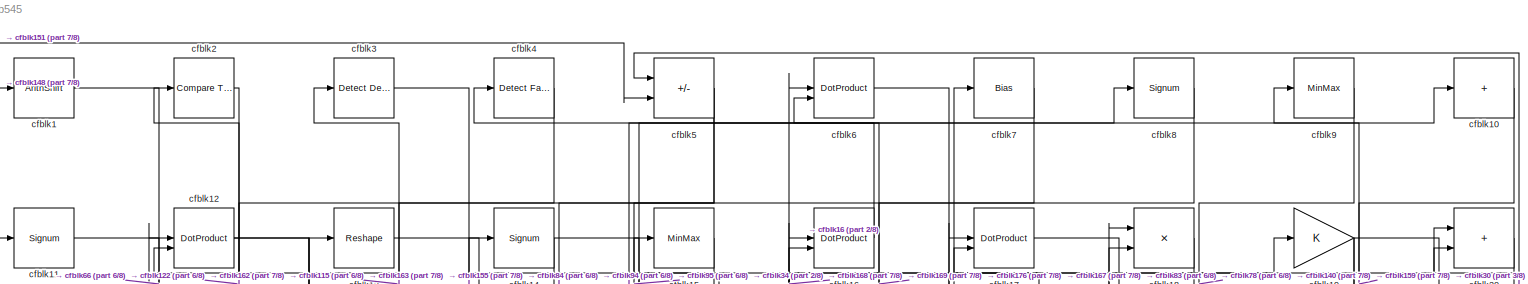
[diagram: root canvas - part 1/8, full width, top band]
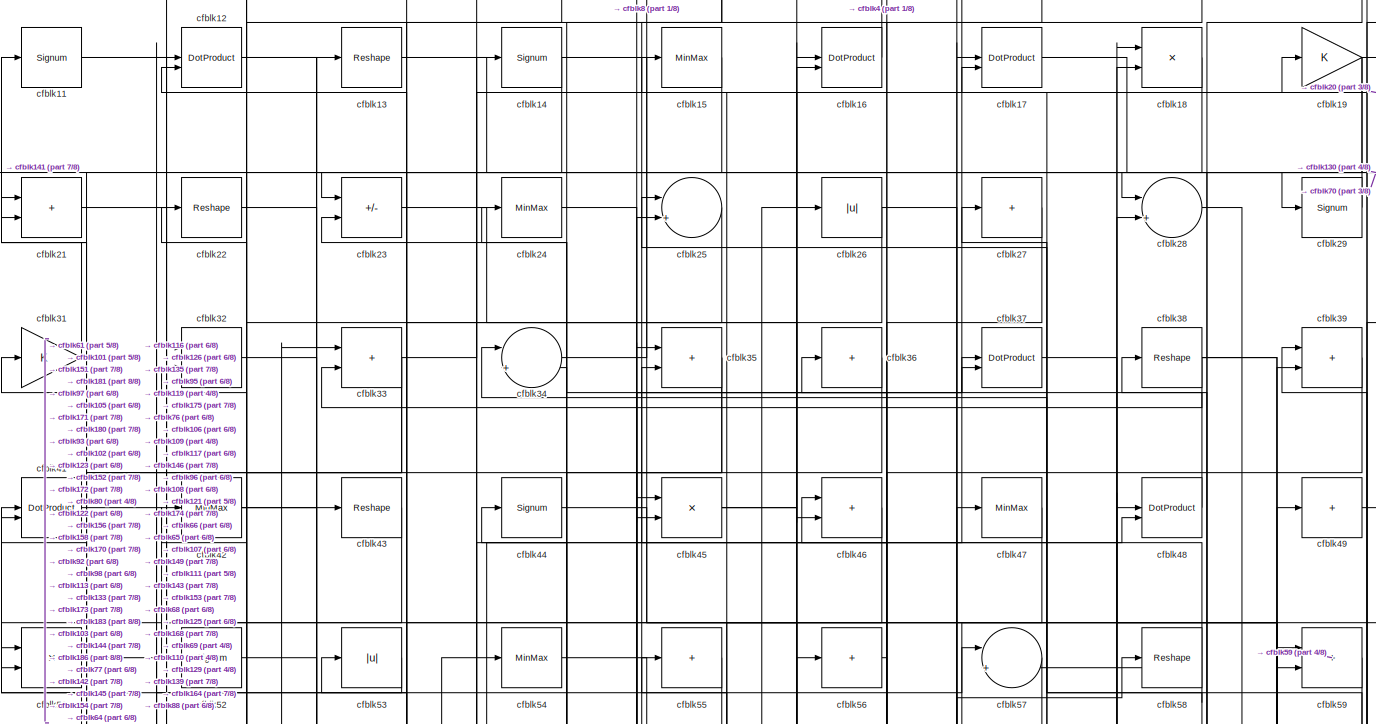
[diagram: root canvas - part 2/8, full width, top band]
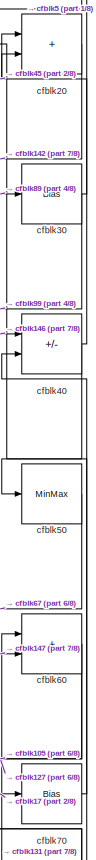
[diagram: root canvas - part 3/8, top right region]
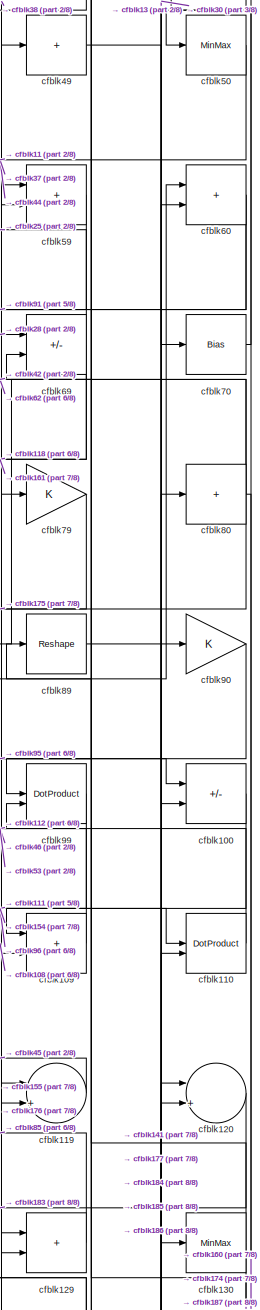
[diagram: root canvas - part 4/8, middle right region]
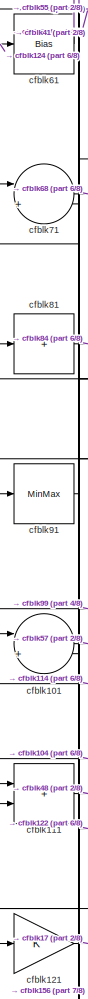
[diagram: root canvas - part 5/8, middle left region]
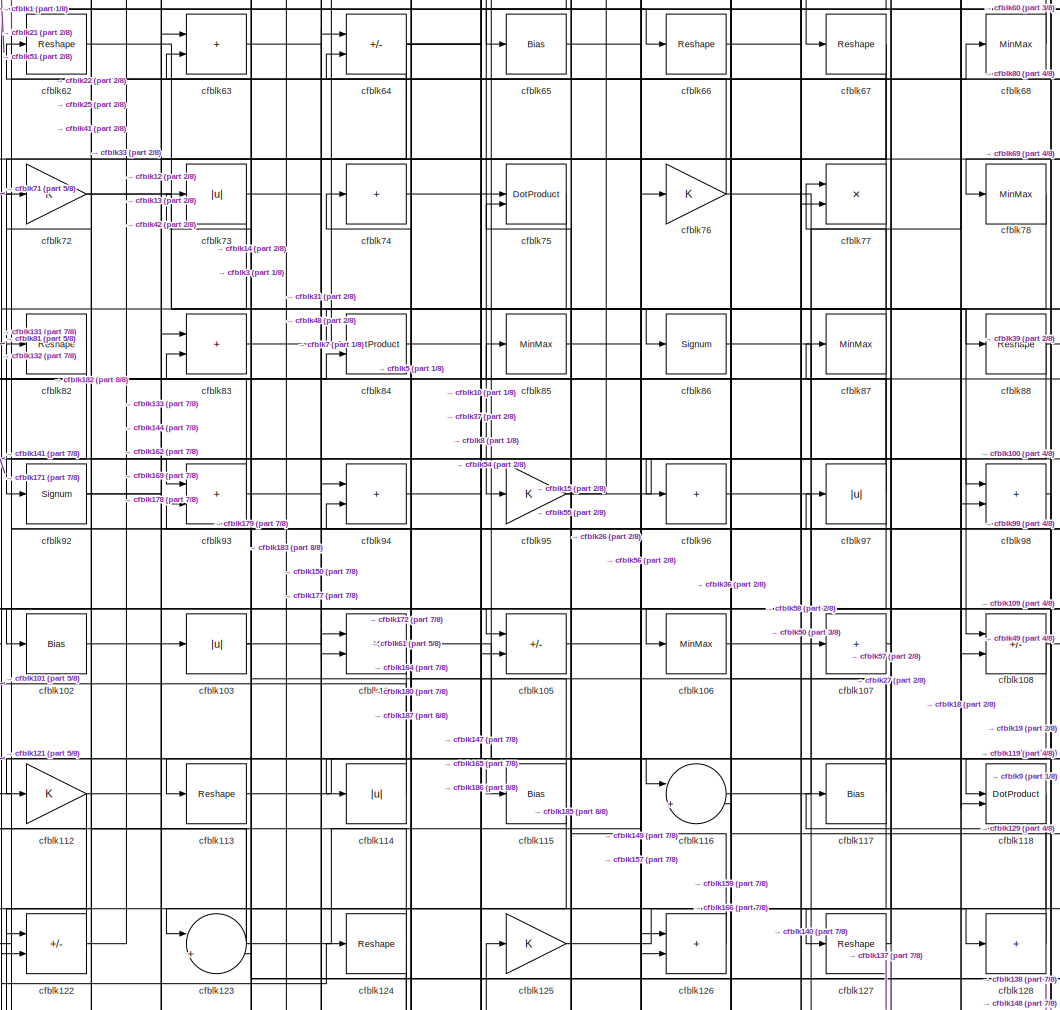
[diagram: root canvas - part 6/8, central region]
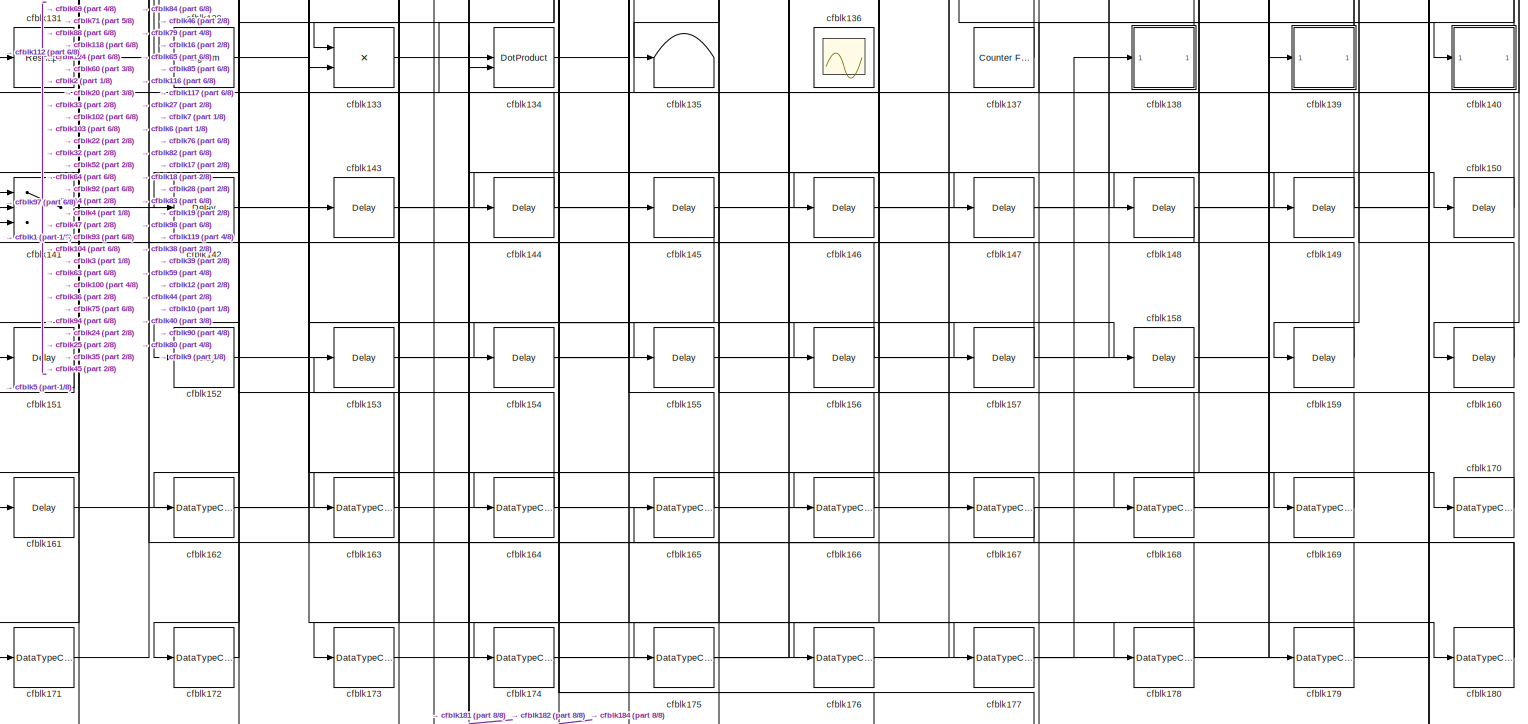
[diagram: root canvas - part 7/8, full width, bottom band]
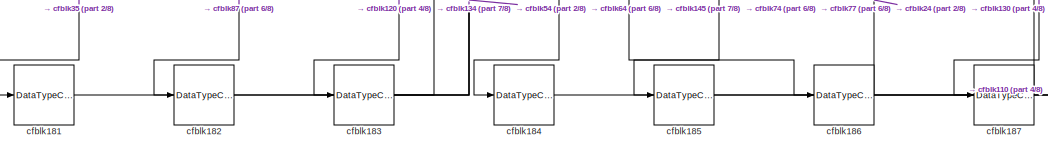
[diagram: root canvas - part 8/8, bottom center region]
MODEL slx_6262ddc7b545
KIND model
CONFIG AbsTol = auto
CONFIG EnableMultiTasking = off
CONFIG FixedStep = auto
CONFIG MaxStep = auto
CONFIG MinStep = auto
CONFIG RelTol = 1e-3
CONFIG SampleTimeConstraint = Unconstrained
CONFIG SolverName = VariableStepAuto
CONFIG StartTime = 0.0
CONFIG StopTime = 10.0
BLOCK [ArithShift] cfblk1
  BitShiftNumber = 8
  InputPortMap = u0
BLOCK [Sum] cfblk10
  IconShape = rectangular
  Inputs = +
BLOCK [Sum] cfblk100
  IconShape = rectangular
  Inputs = +-
BLOCK [Sum] cfblk101
  Inputs = |++
BLOCK [Bias] cfblk102
  Bias = 0.0
  SaturateOnIntegerOverflow = off
BLOCK [Abs] cfblk103
  SaturateOnIntegerOverflow = off
BLOCK [Product] cfblk104
  Inputs = */
  RndMeth = Zero
  SaturateOnIntegerOverflow = on
BLOCK [Sum] cfblk105
  IconShape = rectangular
  Inputs = +-
BLOCK [MinMax] cfblk106
BLOCK [Sum] cfblk107
  IconShape = rectangular
  Inputs = +
BLOCK [Sum] cfblk108
  IconShape = rectangular
  Inputs = +-
BLOCK [Sum] cfblk109
  IconShape = rectangular
BLOCK [Signum] cfblk11
BLOCK [DotProduct] cfblk110
  OutDataTypeStr = Inherit: Inherit via internal rule
BLOCK [Sum] cfblk111
  IconShape = rectangular
BLOCK [Gain] cfblk112
BLOCK [Reshape] cfblk113
BLOCK [Abs] cfblk114
  SaturateOnIntegerOverflow = off
BLOCK [Bias] cfblk115
  Bias = 0.0
  SaturateOnIntegerOverflow = off
BLOCK [Sum] cfblk116
  Inputs = |++
BLOCK [Bias] cfblk117
  Bias = 0.0
  SaturateOnIntegerOverflow = off
BLOCK [DotProduct] cfblk118
  OutDataTypeStr = Inherit: Inherit via internal rule
BLOCK [Sum] cfblk119
  Inputs = |++
BLOCK [DotProduct] cfblk12
  OutDataTypeStr = Inherit: Inherit via internal rule
BLOCK [Sum] cfblk120
  Inputs = |++
BLOCK [Gain] cfblk121
BLOCK [Sum] cfblk122
  IconShape = rectangular
  Inputs = +-
BLOCK [Sum] cfblk123
  Inputs = |++
BLOCK [Reshape] cfblk124
BLOCK [Gain] cfblk125
BLOCK [Sum] cfblk126
  IconShape = rectangular
BLOCK [Reshape] cfblk127
BLOCK [Sum] cfblk128
  IconShape = rectangular
  Inputs = +
BLOCK [Sum] cfblk129
  IconShape = rectangular
BLOCK [Reshape] cfblk13
BLOCK [MinMax] cfblk130
BLOCK [Reshape] cfblk131
BLOCK [Signum] cfblk132
BLOCK [Product] cfblk133
  Inputs = */
  RndMeth = Zero
  SaturateOnIntegerOverflow = on
BLOCK [DotProduct] cfblk134
  OutDataTypeStr = Inherit: Inherit via internal rule
BLOCK [Terminator] cfblk135
BLOCK [Scope] cfblk136
  Floating = on
  NumInputPorts = 1
  ScopeSpecificationString = Simulink.scopes.TimeScopeBlockCfg('CurrentConfiguration', extmgr.ConfigurationSet(extmgr.Configuration('Core','General UI',true,'FigureColor',[0.156862745098039 0.156862745098039 0.156862745098039]),extmgr.Configuration('Core','Source UI',true),extmgr.Configuration('Sources','WiredSimulink',true,'DataLoggingVariableName','ScopeData1','DataLoggingSaveFormat','StructureWithTime','DataLoggingLimitDat...<+2713ch>
BLOCK [Reference] cfblk137  REF=hdlsllib/Sources/Counter
Free-Running
  SourceBlock = hdlsllib/Sources/Counter\nFree-Running
  SourceType = Counter Free-Running
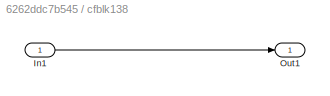
BLOCK [SubSystem] cfblk138
  LibrarySourceBlock = hdlsllib/Ports &\nSubsystems/Subsystem
BLOCK [Inport] cfblk138/In1
BLOCK [Outport] cfblk138/Out1
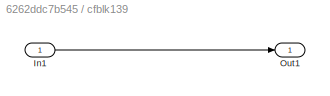
BLOCK [SubSystem] cfblk139
  LibrarySourceBlock = hdlsllib/Ports &\nSubsystems/Subsystem
BLOCK [Inport] cfblk139/In1
BLOCK [Outport] cfblk139/Out1
BLOCK [Signum] cfblk14
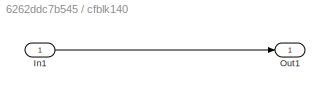
BLOCK [SubSystem] cfblk140
  LibrarySourceBlock = hdlsllib/Ports &\nSubsystems/Subsystem
BLOCK [Inport] cfblk140/In1
BLOCK [Outport] cfblk140/Out1
BLOCK [Switch] cfblk141
  InputSameDT = off
  SaturateOnIntegerOverflow = off
BLOCK [Delay] cfblk142
  InputPortMap = u0
  SampleTime = 1
BLOCK [Delay] cfblk143
  InputPortMap = u0
  SampleTime = 1
BLOCK [Delay] cfblk144
  InputPortMap = u0
  SampleTime = 1
BLOCK [Delay] cfblk145
  InputPortMap = u0
  SampleTime = 1
BLOCK [Delay] cfblk146
  InputPortMap = u0
  SampleTime = 1
BLOCK [Delay] cfblk147
  InputPortMap = u0
  SampleTime = 1
BLOCK [Delay] cfblk148
  InputPortMap = u0
  SampleTime = 1
BLOCK [Delay] cfblk149
  InputPortMap = u0
  SampleTime = 1
BLOCK [MinMax] cfblk15
BLOCK [Delay] cfblk150
  InputPortMap = u0
  SampleTime = 1
BLOCK [Delay] cfblk151
  InputPortMap = u0
  SampleTime = 1
BLOCK [Delay] cfblk152
  InputPortMap = u0
  SampleTime = 1
BLOCK [Delay] cfblk153
  InputPortMap = u0
  SampleTime = 1
BLOCK [Delay] cfblk154
  InputPortMap = u0
  SampleTime = 1
BLOCK [Delay] cfblk155
  InputPortMap = u0
  SampleTime = 1
BLOCK [Delay] cfblk156
  InputPortMap = u0
  SampleTime = 1
BLOCK [Delay] cfblk157
  InputPortMap = u0
  SampleTime = 1
BLOCK [Delay] cfblk158
  InputPortMap = u0
  SampleTime = 1
BLOCK [Delay] cfblk159
  InputPortMap = u0
  SampleTime = 1
BLOCK [DotProduct] cfblk16
  OutDataTypeStr = Inherit: Inherit via internal rule
BLOCK [Delay] cfblk160
  InputPortMap = u0
  SampleTime = 1
BLOCK [Delay] cfblk161
  InputPortMap = u0
  SampleTime = 1
BLOCK [DataTypeConversion] cfblk162
  OutDataTypeStr = uint8
  RndMeth = Floor
  SaturateOnIntegerOverflow = off
BLOCK [DataTypeConversion] cfblk163
  OutDataTypeStr = uint8
  RndMeth = Floor
  SaturateOnIntegerOverflow = off
BLOCK [DataTypeConversion] cfblk164
  RndMeth = Floor
  SaturateOnIntegerOverflow = off
BLOCK [DataTypeConversion] cfblk165
  OutDataTypeStr = uint8
  RndMeth = Floor
  SaturateOnIntegerOverflow = off
BLOCK [DataTypeConversion] cfblk166
  OutDataTypeStr = uint8
  RndMeth = Floor
  SaturateOnIntegerOverflow = off
BLOCK [DataTypeConversion] cfblk167
  OutDataTypeStr = uint8
  RndMeth = Floor
  SaturateOnIntegerOverflow = off
BLOCK [DataTypeConversion] cfblk168
  OutDataTypeStr = uint8
  RndMeth = Floor
  SaturateOnIntegerOverflow = off
BLOCK [DataTypeConversion] cfblk169
  OutDataTypeStr = uint8
  RndMeth = Floor
  SaturateOnIntegerOverflow = off
BLOCK [DotProduct] cfblk17
  OutDataTypeStr = Inherit: Inherit via internal rule
BLOCK [DataTypeConversion] cfblk170
  OutDataTypeStr = uint8
  RndMeth = Floor
  SaturateOnIntegerOverflow = off
BLOCK [DataTypeConversion] cfblk171
  OutDataTypeStr = uint8
  RndMeth = Floor
  SaturateOnIntegerOverflow = off
BLOCK [DataTypeConversion] cfblk172
  OutDataTypeStr = uint8
  RndMeth = Floor
  SaturateOnIntegerOverflow = off
BLOCK [DataTypeConversion] cfblk173
  OutDataTypeStr = uint8
  RndMeth = Floor
  SaturateOnIntegerOverflow = off
BLOCK [DataTypeConversion] cfblk174
  OutDataTypeStr = uint8
  RndMeth = Floor
  SaturateOnIntegerOverflow = off
BLOCK [DataTypeConversion] cfblk175
  OutDataTypeStr = uint8
  RndMeth = Floor
  SaturateOnIntegerOverflow = off
BLOCK [DataTypeConversion] cfblk176
  OutDataTypeStr = uint8
  RndMeth = Floor
  SaturateOnIntegerOverflow = off
BLOCK [DataTypeConversion] cfblk177
  RndMeth = Floor
  SaturateOnIntegerOverflow = off
BLOCK [DataTypeConversion] cfblk178
  OutDataTypeStr = uint8
  RndMeth = Floor
  SaturateOnIntegerOverflow = off
BLOCK [DataTypeConversion] cfblk179
  OutDataTypeStr = uint8
  RndMeth = Floor
  SaturateOnIntegerOverflow = off
BLOCK [Product] cfblk18
  Inputs = */
  RndMeth = Zero
  SaturateOnIntegerOverflow = on
BLOCK [DataTypeConversion] cfblk180
  RndMeth = Floor
  SaturateOnIntegerOverflow = off
BLOCK [DataTypeConversion] cfblk181
  OutDataTypeStr = uint8
  RndMeth = Floor
  SaturateOnIntegerOverflow = off
BLOCK [DataTypeConversion] cfblk182
  OutDataTypeStr = uint8
  RndMeth = Floor
  SaturateOnIntegerOverflow = off
BLOCK [DataTypeConversion] cfblk183
  RndMeth = Floor
  SaturateOnIntegerOverflow = off
BLOCK [DataTypeConversion] cfblk184
  OutDataTypeStr = uint8
  RndMeth = Floor
  SaturateOnIntegerOverflow = off
BLOCK [DataTypeConversion] cfblk185
  OutDataTypeStr = uint8
  RndMeth = Floor
  SaturateOnIntegerOverflow = off
BLOCK [DataTypeConversion] cfblk186
  RndMeth = Floor
  SaturateOnIntegerOverflow = off
BLOCK [DataTypeConversion] cfblk187
  OutDataTypeStr = uint8
  RndMeth = Floor
  SaturateOnIntegerOverflow = off
BLOCK [Gain] cfblk19
BLOCK [Reference] cfblk2  REF=hdlsllib/Logic and Bit
Operations/Compare
To Constant
  SourceBlock = hdlsllib/Logic and Bit\nOperations/Compare\nTo Constant
  SourceType = Compare To Constant
BLOCK [Sum] cfblk20
  IconShape = rectangular
BLOCK [Sum] cfblk21
  IconShape = rectangular
BLOCK [Reshape] cfblk22
BLOCK [Sum] cfblk23
  IconShape = rectangular
  Inputs = +-
BLOCK [MinMax] cfblk24
BLOCK [Sum] cfblk25
  Inputs = |++
BLOCK [Abs] cfblk26
  SaturateOnIntegerOverflow = off
BLOCK [Sum] cfblk27
  IconShape = rectangular
  Inputs = +
BLOCK [Sum] cfblk28
  Inputs = |++
BLOCK [Signum] cfblk29
BLOCK [Reference] cfblk3  REF=simulink/Logic and Bit
Operations/Detect
Decrease
  LibrarySourceBlock = hdlsllib/Logic and Bit\nOperations/Detect\nDecrease
  SourceBlock = simulink/Logic and Bit\nOperations/Detect\nDecrease
  SourceType = Detect Decrease
BLOCK [Bias] cfblk30
  Bias = 0.0
  SaturateOnIntegerOverflow = off
BLOCK [Gain] cfblk31
BLOCK [Product] cfblk32
  Inputs = */
  RndMeth = Zero
  SaturateOnIntegerOverflow = on
BLOCK [Sum] cfblk33
  IconShape = rectangular
BLOCK [Sum] cfblk34
  Inputs = |++
BLOCK [Sum] cfblk35
  IconShape = rectangular
BLOCK [Sum] cfblk36
  IconShape = rectangular
  Inputs = +
BLOCK [DotProduct] cfblk37
  OutDataTypeStr = Inherit: Inherit via internal rule
BLOCK [Reshape] cfblk38
BLOCK [Sum] cfblk39
  IconShape = rectangular
BLOCK [Reference] cfblk4  REF=hdlsllib/Logic and Bit
Operations/Detect Fall
Negative
  SourceBlock = hdlsllib/Logic and Bit\nOperations/Detect Fall\nNegative
  SourceType = Detect Fall Negative
BLOCK [Sum] cfblk40
  IconShape = rectangular
  Inputs = +-
BLOCK [DotProduct] cfblk41
  OutDataTypeStr = Inherit: Inherit via internal rule
BLOCK [MinMax] cfblk42
BLOCK [Reshape] cfblk43
BLOCK [Signum] cfblk44
BLOCK [Product] cfblk45
  Inputs = */
  RndMeth = Zero
  SaturateOnIntegerOverflow = on
BLOCK [Sum] cfblk46
  IconShape = rectangular
BLOCK [MinMax] cfblk47
BLOCK [DotProduct] cfblk48
  OutDataTypeStr = Inherit: Inherit via internal rule
BLOCK [Sum] cfblk49
  IconShape = rectangular
  Inputs = +
BLOCK [Sum] cfblk5
  IconShape = rectangular
  Inputs = +-
BLOCK [MinMax] cfblk50
BLOCK [Product] cfblk51
  Inputs = */
  RndMeth = Zero
  SaturateOnIntegerOverflow = on
BLOCK [Signum] cfblk52
BLOCK [Abs] cfblk53
  SaturateOnIntegerOverflow = off
BLOCK [MinMax] cfblk54
BLOCK [Sum] cfblk55
  IconShape = rectangular
  Inputs = +
BLOCK [Sum] cfblk56
  IconShape = rectangular
  Inputs = +
BLOCK [Sum] cfblk57
  Inputs = |++
BLOCK [Reshape] cfblk58
BLOCK [Sum] cfblk59
  IconShape = rectangular
BLOCK [DotProduct] cfblk6
  OutDataTypeStr = Inherit: Inherit via internal rule
BLOCK [Sum] cfblk60
  IconShape = rectangular
BLOCK [Bias] cfblk61
  Bias = 0.0
  SaturateOnIntegerOverflow = off
BLOCK [Reshape] cfblk62
BLOCK [Sum] cfblk63
  IconShape = rectangular
BLOCK [Sum] cfblk64
  IconShape = rectangular
  Inputs = +-
BLOCK [Bias] cfblk65
  Bias = 0.0
  SaturateOnIntegerOverflow = off
BLOCK [Reshape] cfblk66
BLOCK [Reshape] cfblk67
BLOCK [MinMax] cfblk68
BLOCK [Sum] cfblk69
  IconShape = rectangular
  Inputs = +-
BLOCK [Bias] cfblk7
  Bias = 0.0
  SaturateOnIntegerOverflow = off
BLOCK [Bias] cfblk70
  Bias = 0.0
  SaturateOnIntegerOverflow = off
BLOCK [Sum] cfblk71
  Inputs = |++
BLOCK [Gain] cfblk72
BLOCK [Abs] cfblk73
  SaturateOnIntegerOverflow = off
BLOCK [Sum] cfblk74
  IconShape = rectangular
  Inputs = +
BLOCK [DotProduct] cfblk75
  OutDataTypeStr = Inherit: Inherit via internal rule
BLOCK [Gain] cfblk76
BLOCK [Product] cfblk77
  Inputs = */
  RndMeth = Zero
  SaturateOnIntegerOverflow = on
BLOCK [MinMax] cfblk78
BLOCK [Gain] cfblk79
BLOCK [Signum] cfblk8
BLOCK [Sum] cfblk80
  IconShape = rectangular
  Inputs = +
BLOCK [Sum] cfblk81
  IconShape = rectangular
  Inputs = +
BLOCK [Reshape] cfblk82
BLOCK [Sum] cfblk83
  IconShape = rectangular
BLOCK [DotProduct] cfblk84
  OutDataTypeStr = Inherit: Inherit via internal rule
BLOCK [MinMax] cfblk85
BLOCK [Signum] cfblk86
BLOCK [MinMax] cfblk87
BLOCK [Reshape] cfblk88
BLOCK [Reshape] cfblk89
BLOCK [MinMax] cfblk9
BLOCK [Gain] cfblk90
BLOCK [MinMax] cfblk91
BLOCK [Signum] cfblk92
BLOCK [Sum] cfblk93
  IconShape = rectangular
BLOCK [Sum] cfblk94
  IconShape = rectangular
BLOCK [Gain] cfblk95
BLOCK [Sum] cfblk96
  IconShape = rectangular
  Inputs = +
BLOCK [Abs] cfblk97
  SaturateOnIntegerOverflow = off
BLOCK [Sum] cfblk98
  IconShape = rectangular
BLOCK [DotProduct] cfblk99
  OutDataTypeStr = Inherit: Inherit via internal rule
LINE cfblk100:1 -> cfblk154:1
LINE cfblk101:1 -> cfblk57:1
LINE cfblk102:1 -> cfblk178:1
NET cfblk103:1 -> cfblk19:1, cfblk73:1
NET cfblk104:1 -> cfblk121:1, cfblk126:2
LINE cfblk105:1 -> cfblk56:1
LINE cfblk106:1 -> cfblk107:1
LINE cfblk107:1 -> cfblk27:1
NET cfblk108:1 -> cfblk123:2, cfblk49:1
LINE cfblk109:1 -> cfblk46:1
LINE cfblk10:1 -> cfblk159:1
LINE cfblk110:1 -> cfblk53:1
LINE cfblk111:1 -> cfblk48:1
NET cfblk112:1 -> cfblk131:1, cfblk99:2
LINE cfblk113:1 -> cfblk115:1
LINE cfblk114:1 -> cfblk101:1
NET cfblk115:1 -> cfblk123:1, cfblk3:1
LINE cfblk116:1 -> cfblk18:1
NET cfblk117:1 -> cfblk166:1, cfblk36:1, cfblk64:2
LINE cfblk118:1 -> cfblk132:1
LINE cfblk119:1 -> cfblk112:1
LINE cfblk11:1 -> cfblk129:2
LINE cfblk120:1 -> cfblk183:1
LINE cfblk121:1 -> cfblk17:1
NET cfblk122:1 -> cfblk33:1, cfblk81:1
NET cfblk123:1 -> cfblk22:1, cfblk41:2, cfblk97:1
NET cfblk124:1 -> cfblk172:1, cfblk61:1, cfblk72:1
LINE cfblk125:1 -> cfblk128:1
LINE cfblk126:1 -> cfblk55:1
LINE cfblk127:1 -> cfblk87:1
LINE cfblk128:1 -> cfblk117:1
LINE cfblk129:1 -> cfblk85:1
NET cfblk12:1 -> cfblk29:1, cfblk77:2
NET cfblk130:1 -> cfblk187:1, cfblk89:1
NET cfblk131:1 -> cfblk124:1, cfblk60:1
LINE cfblk132:1 -> cfblk143:1
LINE cfblk133:1 -> cfblk150:1
LINE cfblk134:1 -> cfblk180:1
LINE cfblk137:1 -> cfblk82:1
LINE cfblk138/In1:1 -> cfblk138/Out1:1
LINE cfblk138:1 -> cfblk83:2
LINE cfblk139/In1:1 -> cfblk139/Out1:1
NET cfblk139:1 -> cfblk12:2, cfblk44:1
LINE cfblk13:1 -> cfblk130:1
LINE cfblk140/In1:1 -> cfblk140/Out1:1
LINE cfblk140:1 -> cfblk9:1
LINE cfblk141:1 -> cfblk90:1
LINE cfblk142:1 -> cfblk35:1
LINE cfblk143:1 -> cfblk18:2
LINE cfblk144:1 -> cfblk83:1
LINE cfblk145:1 -> cfblk184:1
LINE cfblk146:1 -> cfblk40:1
LINE cfblk147:1 -> cfblk60:2
LINE cfblk148:1 -> cfblk1:1
LINE cfblk149:1 -> cfblk17:2
NET cfblk14:1 -> cfblk133:1, cfblk76:1
LINE cfblk150:1 -> cfblk104:1
LINE cfblk151:1 -> cfblk5:2
LINE cfblk152:1 -> cfblk25:2
LINE cfblk153:1 -> cfblk28:2
LINE cfblk154:1 -> cfblk45:1
LINE cfblk155:1 -> cfblk59:1
LINE cfblk156:1 -> cfblk71:1
LINE cfblk157:1 -> cfblk93:2
LINE cfblk158:1 -> cfblk179:1
LINE cfblk159:1 -> cfblk116:2
LINE cfblk15:1 -> cfblk101:2
LINE cfblk160:1 -> cfblk69:2
LINE cfblk161:1 -> cfblk119:1
LINE cfblk162:1 -> cfblk103:1
LINE cfblk163:1 -> cfblk2:1
NET cfblk164:1 -> cfblk153:1, cfblk39:2
LINE cfblk165:1 -> cfblk75:1
LINE cfblk166:1 -> cfblk75:2
LINE cfblk167:1 -> cfblk165:1
LINE cfblk168:1 -> cfblk6:1
LINE cfblk169:1 -> cfblk6:2
LINE cfblk16:1 -> cfblk4:1
LINE cfblk170:1 -> cfblk38:1
LINE cfblk171:1 -> cfblk32:1
LINE cfblk172:1 -> cfblk32:2
LINE cfblk173:1 -> cfblk16:1
LINE cfblk174:1 -> cfblk47:1
LINE cfblk175:1 -> cfblk16:2
LINE cfblk176:1 -> cfblk79:1
NET cfblk177:1 -> cfblk138:1, cfblk80:1
LINE cfblk178:1 -> cfblk63:1
LINE cfblk179:1 -> cfblk63:2
LINE cfblk17:1 -> cfblk70:1
NET cfblk180:1 -> cfblk12:1, cfblk94:2
LINE cfblk181:1 -> cfblk134:1
LINE cfblk182:1 -> cfblk134:2
NET cfblk183:1 -> cfblk54:1, cfblk64:1
LINE cfblk184:1 -> cfblk120:1
LINE cfblk185:1 -> cfblk120:2
NET cfblk186:1 -> cfblk110:2, cfblk24:1
LINE cfblk187:1 -> cfblk74:1
LINE cfblk18:1 -> cfblk28:1
NET cfblk19:1 -> cfblk125:1, cfblk141:3, cfblk168:1
LINE cfblk1:1 -> cfblk66:1
LINE cfblk20:1 -> cfblk142:1
LINE cfblk21:1 -> cfblk93:1
LINE cfblk22:1 -> cfblk156:1
LINE cfblk23:1 -> cfblk46:2
LINE cfblk24:1 -> cfblk145:1
LINE cfblk25:1 -> cfblk102:1
NET cfblk26:1 -> cfblk108:2, cfblk113:1
LINE cfblk27:1 -> cfblk146:1
LINE cfblk28:1 -> cfblk69:1
LINE cfblk29:1 -> cfblk23:1
LINE cfblk2:1 -> cfblk162:1
NET cfblk30:1 -> cfblk5:1, cfblk99:1
LINE cfblk31:1 -> cfblk11:1
LINE cfblk32:1 -> cfblk170:1
NET cfblk33:1 -> cfblk14:1, cfblk151:1, cfblk152:1
LINE cfblk34:1 -> cfblk8:1
NET cfblk35:1 -> cfblk181:1, cfblk45:2
LINE cfblk36:1 -> cfblk144:1
LINE cfblk37:1 -> cfblk59:2
NET cfblk38:1 -> cfblk110:1, cfblk139:1, cfblk33:2
LINE cfblk39:1 -> cfblk96:1
LINE cfblk3:1 -> cfblk155:1
NET cfblk40:1 -> cfblk20:2, cfblk50:1
LINE cfblk41:1 -> cfblk52:1
NET cfblk42:1 -> cfblk43:1, cfblk98:2
LINE cfblk43:1 -> cfblk51:1
LINE cfblk44:1 -> cfblk129:1
NET cfblk45:1 -> cfblk119:2, cfblk20:1
LINE cfblk46:1 -> cfblk135:1
LINE cfblk47:1 -> cfblk173:1
LINE cfblk48:1 -> cfblk23:2
LINE cfblk49:1 -> cfblk100:2
LINE cfblk4:1 -> cfblk163:1
LINE cfblk50:1 -> cfblk67:1
LINE cfblk51:1 -> cfblk105:1
LINE cfblk52:1 -> cfblk158:1
LINE cfblk53:1 -> cfblk51:2
LINE cfblk54:1 -> cfblk116:1
LINE cfblk55:1 -> cfblk111:2
LINE cfblk56:1 -> cfblk106:1
LINE cfblk57:1 -> cfblk65:1
NET cfblk58:1 -> cfblk35:2, cfblk57:2
LINE cfblk59:1 -> cfblk91:1
NET cfblk5:1 -> cfblk122:1, cfblk84:1
NET cfblk60:1 -> cfblk105:2, cfblk127:1
LINE cfblk61:1 -> cfblk41:1
LINE cfblk62:1 -> cfblk108:1
LINE cfblk63:1 -> cfblk177:1
NET cfblk64:1 -> cfblk104:2, cfblk133:2, cfblk37:1, cfblk37:2, cfblk88:1
LINE cfblk65:1 -> cfblk149:1
LINE cfblk66:1 -> cfblk58:1
NET cfblk67:1 -> cfblk114:1, cfblk92:1
LINE cfblk68:1 -> cfblk34:1
NET cfblk69:1 -> cfblk118:1, cfblk161:1, cfblk25:1
LINE cfblk6:1 -> cfblk167:1
LINE cfblk70:1 -> cfblk40:2
LINE cfblk71:1 -> cfblk68:1
NET cfblk72:1 -> cfblk118:2, cfblk126:1
NET cfblk73:1 -> cfblk122:2, cfblk94:1
LINE cfblk74:1 -> cfblk186:1
LINE cfblk75:1 -> cfblk164:1
NET cfblk76:1 -> cfblk140:1, cfblk15:1
NET cfblk77:1 -> cfblk185:1, cfblk34:2
LINE cfblk78:1 -> cfblk86:1
LINE cfblk79:1 -> cfblk175:1
LINE cfblk7:1 -> cfblk176:1
NET cfblk80:1 -> cfblk160:1, cfblk174:1, cfblk42:1, cfblk62:1
LINE cfblk81:1 -> cfblk84:2
LINE cfblk82:1 -> cfblk171:1
LINE cfblk83:1 -> cfblk7:1
LINE cfblk84:1 -> cfblk147:1
LINE cfblk85:1 -> cfblk157:1
LINE cfblk86:1 -> cfblk98:1
NET cfblk87:1 -> cfblk182:1, cfblk77:1
NET cfblk88:1 -> cfblk141:1, cfblk39:1
LINE cfblk89:1 -> cfblk30:1
LINE cfblk8:1 -> cfblk95:1
LINE cfblk90:1 -> cfblk109:2
LINE cfblk91:1 -> cfblk71:2
NET cfblk92:1 -> cfblk13:1, cfblk169:1
NET cfblk93:1 -> cfblk31:1, cfblk48:2
LINE cfblk94:1 -> cfblk10:1
NET cfblk95:1 -> cfblk100:1, cfblk26:1
LINE cfblk96:1 -> cfblk109:1
NET cfblk97:1 -> cfblk141:2, cfblk21:1, cfblk21:2
LINE cfblk98:1 -> cfblk148:1
LINE cfblk99:1 -> cfblk111:1
LINE cfblk9:1 -> cfblk78:1
note: NET lines group one-source signal fan-out (src -> all destinations, sorted); 1:1 wires keep LINE
